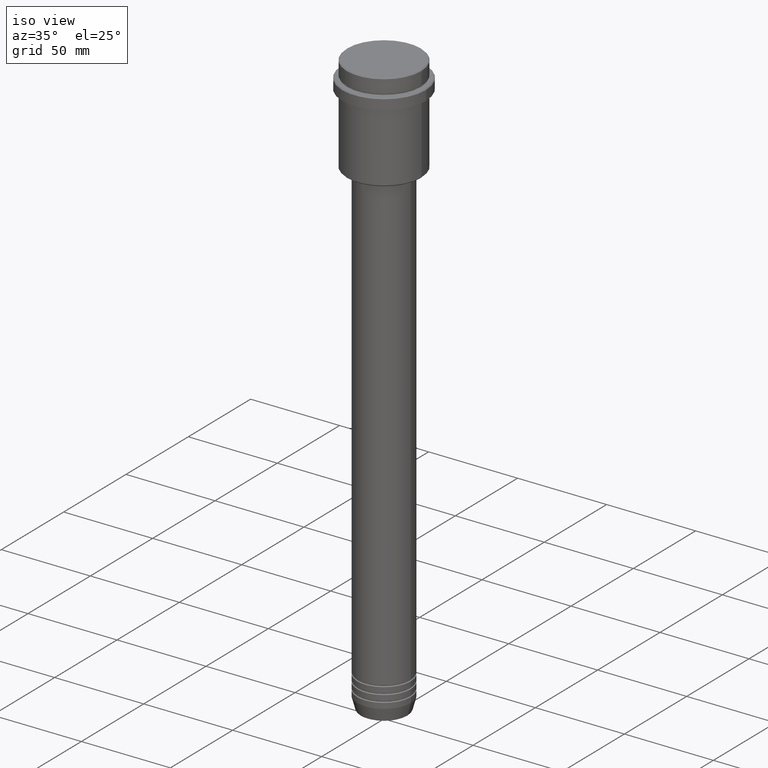
[diagram: clean part render]
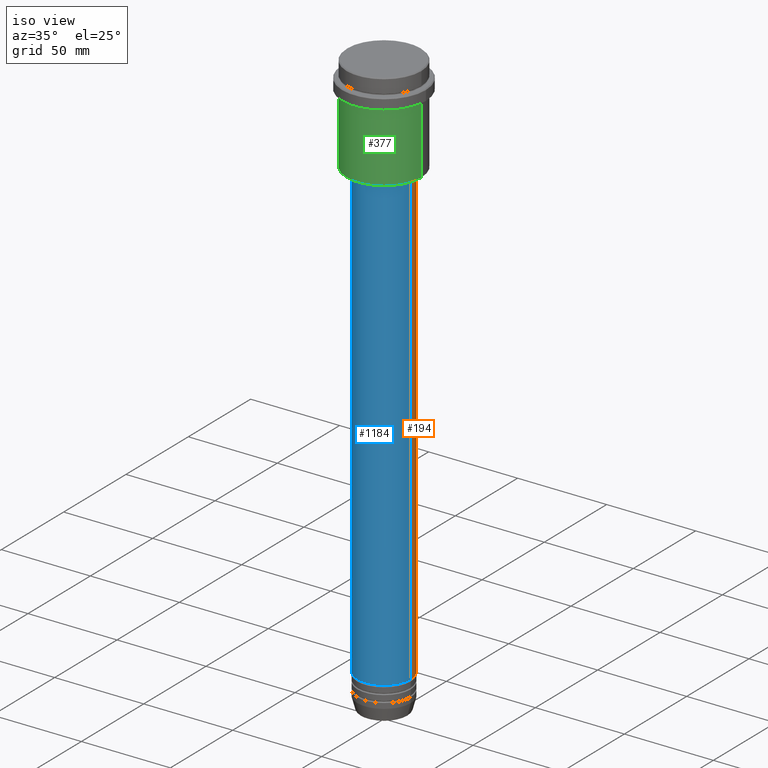
[diagram: same view with three faces highlighted in distinct colors, each labeled with its STEP entity id]
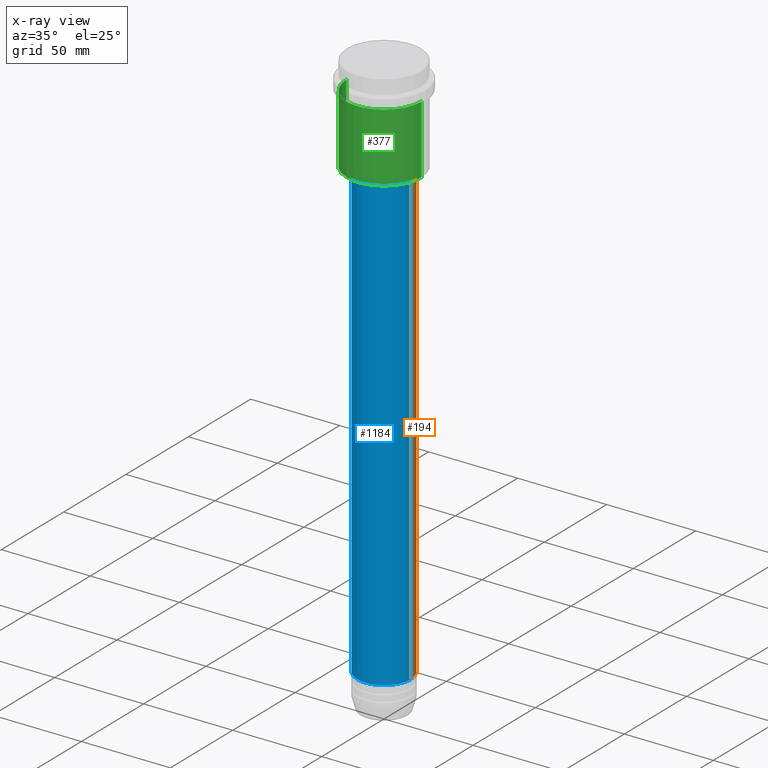
[diagram: x-ray of the same camera — body ghosted, the three highlighted faces saturated]
A machine part, iso view with three faces highlighted in distinct colors.
The next image is the same camera in x-ray (body ghosted, the three faces saturated) — at least one of them is partly hidden behind the body in this view.
Their STEP definitions:

[orange] entity #194 — the highlighted cylindrical surface (edge-blend (fillet) strip) has radius 15 mm, axis along (-0, -0, 1).
#23 = DIRECTION ( 'NONE',  ( -0.000000000000000000, -0.000000000000000000, 1.000000000000000000 ) ) ;
#64 = EDGE_LOOP ( 'NONE', ( #308, #891, #943, #495 ) ) ;
#79 = CARTESIAN_POINT ( 'NONE',  ( 0.000000000000000000, 0.000000000000000000, 0.000000000000000000 ) ) ;
#86 = VERTEX_POINT ( 'NONE', #536 ) ;
#94 = CARTESIAN_POINT ( 'NONE',  ( -15.00000000000000000, 1.836970198721029589E-15, -310.9999999999998863 ) ) ;
#107 = CARTESIAN_POINT ( 'NONE',  ( 0.000000000000000000, 0.000000000000000000, -310.9999999999998863 ) ) ;
#159 = CIRCLE ( 'NONE', #587, 15.00000000000000000 ) ;
#194 = ADVANCED_FACE ( 'NONE', ( #276 ), #949, .T. ) ;
#214 = VECTOR ( 'NONE', #582, 1000.000000000000000 ) ;
#248 = DIRECTION ( 'NONE',  ( 1.000000000000000000, 0.000000000000000000, 0.000000000000000000 ) ) ;
#276 = FACE_OUTER_BOUND ( 'NONE', #64, .T. ) ;
#284 = CARTESIAN_POINT ( 'NONE',  ( 15.00000000000000000, 0.000000000000000000, 0.000000000000000000 ) ) ;
#308 = ORIENTED_EDGE ( 'NONE', *, *, #1353, .T. ) ;
#360 = LINE ( 'NONE', #778, #1101 ) ;
#366 = VERTEX_POINT ( 'NONE', #94 ) ;
#404 = CARTESIAN_POINT ( 'NONE',  ( 15.00000000000000000, 0.000000000000000000, -310.9999999999998863 ) ) ;
#419 = CARTESIAN_POINT ( 'NONE',  ( -15.00000000000000000, 1.836970198721029589E-15, -55.99999999999991473 ) ) ;
#422 = VERTEX_POINT ( 'NONE', #419 ) ;
#425 = EDGE_CURVE ( 'NONE', #366, #422, #360, .T. ) ;
#482 = DIRECTION ( 'NONE',  ( -0.000000000000000000, -0.000000000000000000, 1.000000000000000000 ) ) ;
#495 = ORIENTED_EDGE ( 'NONE', *, *, #1059, .F. ) ;
#536 = CARTESIAN_POINT ( 'NONE',  ( 15.00000000000000000, 0.000000000000000000, -55.99999999999991473 ) ) ;
#582 = DIRECTION ( 'NONE',  ( -0.000000000000000000, -0.000000000000000000, 1.000000000000000000 ) ) ;
#587 = AXIS2_PLACEMENT_3D ( 'NONE', #107, #23, #670 ) ;
#641 = CARTESIAN_POINT ( 'NONE',  ( 0.000000000000000000, 0.000000000000000000, -55.99999999999991473 ) ) ;
#670 = DIRECTION ( 'NONE',  ( 1.000000000000000000, 0.000000000000000000, 0.000000000000000000 ) ) ;
#707 = EDGE_CURVE ( 'NONE', #86, #422, #1305, .T. ) ;
#778 = CARTESIAN_POINT ( 'NONE',  ( -15.00000000000000000, 1.836970198721029589E-15, 0.000000000000000000 ) ) ;
#791 = DIRECTION ( 'NONE',  ( -0.000000000000000000, -0.000000000000000000, 1.000000000000000000 ) ) ;
#851 = DIRECTION ( 'NONE',  ( 1.000000000000000000, 0.000000000000000000, 0.000000000000000000 ) ) ;
#891 = ORIENTED_EDGE ( 'NONE', *, *, #425, .T. ) ;
#922 = LINE ( 'NONE', #284, #214 ) ;
#943 = ORIENTED_EDGE ( 'NONE', *, *, #707, .F. ) ;
#949 = CYLINDRICAL_SURFACE ( 'NONE', #953, 15.00000000000000000 ) ;
#953 = AXIS2_PLACEMENT_3D ( 'NONE', #79, #482, #248 ) ;
#1059 = EDGE_CURVE ( 'NONE', #1284, #86, #922, .T. ) ;
#1101 = VECTOR ( 'NONE', #791, 1000.000000000000000 ) ;
#1185 = DIRECTION ( 'NONE',  ( -0.000000000000000000, -0.000000000000000000, 1.000000000000000000 ) ) ;
#1284 = VERTEX_POINT ( 'NONE', #404 ) ;
#1305 = CIRCLE ( 'NONE', #1348, 15.00000000000000000 ) ;
#1348 = AXIS2_PLACEMENT_3D ( 'NONE', #641, #1185, #851 ) ;
#1353 = EDGE_CURVE ( 'NONE', #1284, #366, #159, .T. ) ;

[blue] entity #1184 — the highlighted cylindrical surface (edge-blend (fillet) strip) has radius 15 mm, axis along (-0, -0, 1).
#86 = VERTEX_POINT ( 'NONE', #536 ) ;
#94 = CARTESIAN_POINT ( 'NONE',  ( -15.00000000000000000, 1.836970198721029589E-15, -310.9999999999998863 ) ) ;
#97 = DIRECTION ( 'NONE',  ( 1.000000000000000000, 0.000000000000000000, 0.000000000000000000 ) ) ;
#102 = CARTESIAN_POINT ( 'NONE',  ( 0.000000000000000000, 0.000000000000000000, 0.000000000000000000 ) ) ;
#214 = VECTOR ( 'NONE', #582, 1000.000000000000000 ) ;
#266 = CARTESIAN_POINT ( 'NONE',  ( 0.000000000000000000, 0.000000000000000000, -310.9999999999998863 ) ) ;
#284 = CARTESIAN_POINT ( 'NONE',  ( 15.00000000000000000, 0.000000000000000000, 0.000000000000000000 ) ) ;
#295 = CIRCLE ( 'NONE', #1279, 15.00000000000000000 ) ;
#360 = LINE ( 'NONE', #778, #1101 ) ;
#366 = VERTEX_POINT ( 'NONE', #94 ) ;
#404 = CARTESIAN_POINT ( 'NONE',  ( 15.00000000000000000, 0.000000000000000000, -310.9999999999998863 ) ) ;
#419 = CARTESIAN_POINT ( 'NONE',  ( -15.00000000000000000, 1.836970198721029589E-15, -55.99999999999991473 ) ) ;
#422 = VERTEX_POINT ( 'NONE', #419 ) ;
#425 = EDGE_CURVE ( 'NONE', #366, #422, #360, .T. ) ;
#502 = EDGE_LOOP ( 'NONE', ( #797, #1152, #861, #737 ) ) ;
#515 = FACE_OUTER_BOUND ( 'NONE', #502, .T. ) ;
#536 = CARTESIAN_POINT ( 'NONE',  ( 15.00000000000000000, 0.000000000000000000, -55.99999999999991473 ) ) ;
#582 = DIRECTION ( 'NONE',  ( -0.000000000000000000, -0.000000000000000000, 1.000000000000000000 ) ) ;
#602 = EDGE_CURVE ( 'NONE', #366, #1284, #1324, .T. ) ;
#658 = AXIS2_PLACEMENT_3D ( 'NONE', #266, #1029, #1367 ) ;
#724 = EDGE_CURVE ( 'NONE', #422, #86, #295, .T. ) ;
#737 = ORIENTED_EDGE ( 'NONE', *, *, #724, .F. ) ;
#753 = AXIS2_PLACEMENT_3D ( 'NONE', #102, #946, #97 ) ;
#778 = CARTESIAN_POINT ( 'NONE',  ( -15.00000000000000000, 1.836970198721029589E-15, 0.000000000000000000 ) ) ;
#791 = DIRECTION ( 'NONE',  ( -0.000000000000000000, -0.000000000000000000, 1.000000000000000000 ) ) ;
#797 = ORIENTED_EDGE ( 'NONE', *, *, #425, .F. ) ;
#861 = ORIENTED_EDGE ( 'NONE', *, *, #1059, .T. ) ;
#922 = LINE ( 'NONE', #284, #214 ) ;
#946 = DIRECTION ( 'NONE',  ( -0.000000000000000000, -0.000000000000000000, 1.000000000000000000 ) ) ;
#1029 = DIRECTION ( 'NONE',  ( -0.000000000000000000, -0.000000000000000000, 1.000000000000000000 ) ) ;
#1054 = CYLINDRICAL_SURFACE ( 'NONE', #753, 15.00000000000000000 ) ;
#1059 = EDGE_CURVE ( 'NONE', #1284, #86, #922, .T. ) ;
#1101 = VECTOR ( 'NONE', #791, 1000.000000000000000 ) ;
#1152 = ORIENTED_EDGE ( 'NONE', *, *, #602, .T. ) ;
#1184 = ADVANCED_FACE ( 'NONE', ( #515 ), #1054, .T. ) ;
#1278 = DIRECTION ( 'NONE',  ( 1.000000000000000000, 0.000000000000000000, 0.000000000000000000 ) ) ;
#1279 = AXIS2_PLACEMENT_3D ( 'NONE', #1294, #1417, #1278 ) ;
#1284 = VERTEX_POINT ( 'NONE', #404 ) ;
#1294 = CARTESIAN_POINT ( 'NONE',  ( 0.000000000000000000, 0.000000000000000000, -55.99999999999991473 ) ) ;
#1324 = CIRCLE ( 'NONE', #658, 15.00000000000000000 ) ;
#1367 = DIRECTION ( 'NONE',  ( 1.000000000000000000, 0.000000000000000000, 0.000000000000000000 ) ) ;
#1417 = DIRECTION ( 'NONE',  ( -0.000000000000000000, -0.000000000000000000, 1.000000000000000000 ) ) ;

[green] entity #377 — the highlighted cylindrical surface (partial cylindrical patch) has radius 21 mm, axis along (-0, -0, 1).
#114 = VECTOR ( 'NONE', #1104, 1000.000000000000000 ) ;
#241 = CARTESIAN_POINT ( 'NONE',  ( -20.99999999999999645, 2.571758278209441267E-15, 0.000000000000000000 ) ) ;
#291 = DIRECTION ( 'NONE',  ( 1.000000000000000000, 0.000000000000000000, 0.000000000000000000 ) ) ;
#312 = DIRECTION ( 'NONE',  ( -0.000000000000000000, -0.000000000000000000, 1.000000000000000000 ) ) ;
#377 = ADVANCED_FACE ( 'NONE', ( #968 ), #874, .T. ) ;
#386 = AXIS2_PLACEMENT_3D ( 'NONE', #740, #1412, #429 ) ;
#429 = DIRECTION ( 'NONE',  ( 1.000000000000000000, 0.000000000000000000, 0.000000000000000000 ) ) ;
#451 = LINE ( 'NONE', #241, #114 ) ;
#636 = AXIS2_PLACEMENT_3D ( 'NONE', #1155, #1010, #1248 ) ;
#656 = CARTESIAN_POINT ( 'NONE',  ( -20.99999999999999645, 2.571758278209441267E-15, -54.49999999999996447 ) ) ;
#664 = EDGE_CURVE ( 'NONE', #1291, #1036, #823, .T. ) ;
#695 = EDGE_LOOP ( 'NONE', ( #1025, #868, #923, #1114 ) ) ;
#694 = CARTESIAN_POINT ( 'NONE',  ( 20.99999999999999645, 0.000000000000000000, -54.49999999999996447 ) ) ;
#740 = CARTESIAN_POINT ( 'NONE',  ( 0.000000000000000000, 0.000000000000000000, 0.000000000000000000 ) ) ;
#775 = VECTOR ( 'NONE', #989, 1000.000000000000000 ) ;
#823 = CIRCLE ( 'NONE', #636, 20.99999999999999645 ) ;
#868 = ORIENTED_EDGE ( 'NONE', *, *, #664, .T. ) ;
#874 = CYLINDRICAL_SURFACE ( 'NONE', #386, 20.99999999999999645 ) ;
#881 = LINE ( 'NONE', #1341, #775 ) ;
#893 = VERTEX_POINT ( 'NONE', #1213 ) ;
#918 = EDGE_CURVE ( 'NONE', #1036, #1225, #881, .T. ) ;
#923 = ORIENTED_EDGE ( 'NONE', *, *, #918, .T. ) ;
#936 = AXIS2_PLACEMENT_3D ( 'NONE', #1410, #312, #291 ) ;
#966 = CARTESIAN_POINT ( 'NONE',  ( 20.99999999999999645, 0.000000000000000000, -16.00000000000000355 ) ) ;
#968 = FACE_OUTER_BOUND ( 'NONE', #695, .T. ) ;
#989 = DIRECTION ( 'NONE',  ( -0.000000000000000000, -0.000000000000000000, 1.000000000000000000 ) ) ;
#1010 = DIRECTION ( 'NONE',  ( -0.000000000000000000, -0.000000000000000000, 1.000000000000000000 ) ) ;
#1022 = CIRCLE ( 'NONE', #936, 20.99999999999999645 ) ;
#1025 = ORIENTED_EDGE ( 'NONE', *, *, #1311, .F. ) ;
#1036 = VERTEX_POINT ( 'NONE', #694 ) ;
#1104 = DIRECTION ( 'NONE',  ( -0.000000000000000000, -0.000000000000000000, 1.000000000000000000 ) ) ;
#1114 = ORIENTED_EDGE ( 'NONE', *, *, #1231, .F. ) ;
#1155 = CARTESIAN_POINT ( 'NONE',  ( 0.000000000000000000, 0.000000000000000000, -54.49999999999996447 ) ) ;
#1213 = CARTESIAN_POINT ( 'NONE',  ( -20.99999999999999645, 2.571758278209441267E-15, -16.00000000000000355 ) ) ;
#1225 = VERTEX_POINT ( 'NONE', #966 ) ;
#1231 = EDGE_CURVE ( 'NONE', #893, #1225, #1022, .T. ) ;
#1248 = DIRECTION ( 'NONE',  ( -1.000000000000000000, 0.000000000000000000, 0.000000000000000000 ) ) ;
#1291 = VERTEX_POINT ( 'NONE', #656 ) ;
#1311 = EDGE_CURVE ( 'NONE', #1291, #893, #451, .T. ) ;
#1341 = CARTESIAN_POINT ( 'NONE',  ( 20.99999999999999645, 0.000000000000000000, 0.000000000000000000 ) ) ;
#1410 = CARTESIAN_POINT ( 'NONE',  ( 0.000000000000000000, 0.000000000000000000, -16.00000000000000355 ) ) ;
#1412 = DIRECTION ( 'NONE',  ( -0.000000000000000000, -0.000000000000000000, 1.000000000000000000 ) ) ;